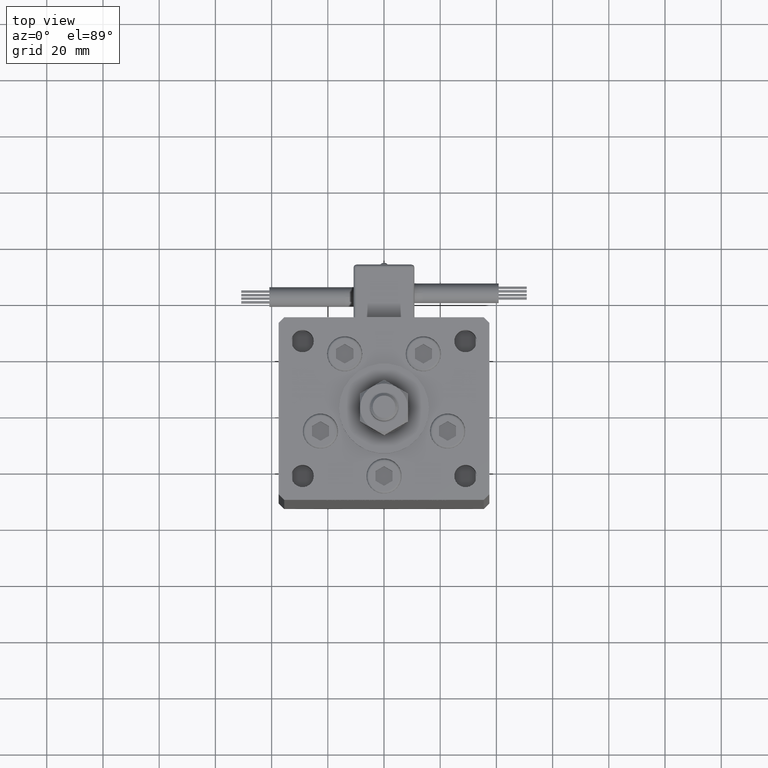
[diagram: clean part render]
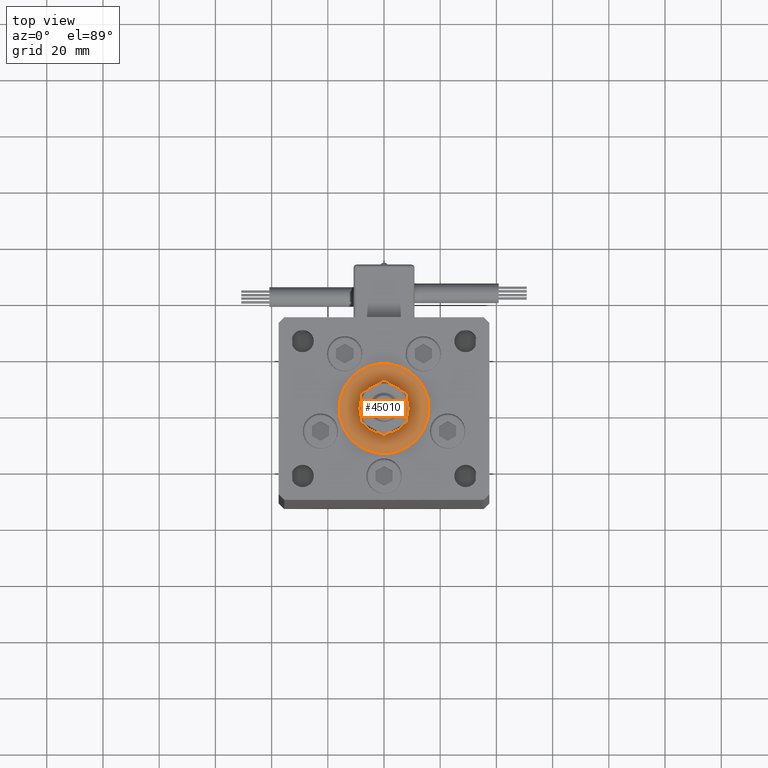
[diagram: same view with one face highlighted and labeled with its STEP entity id]
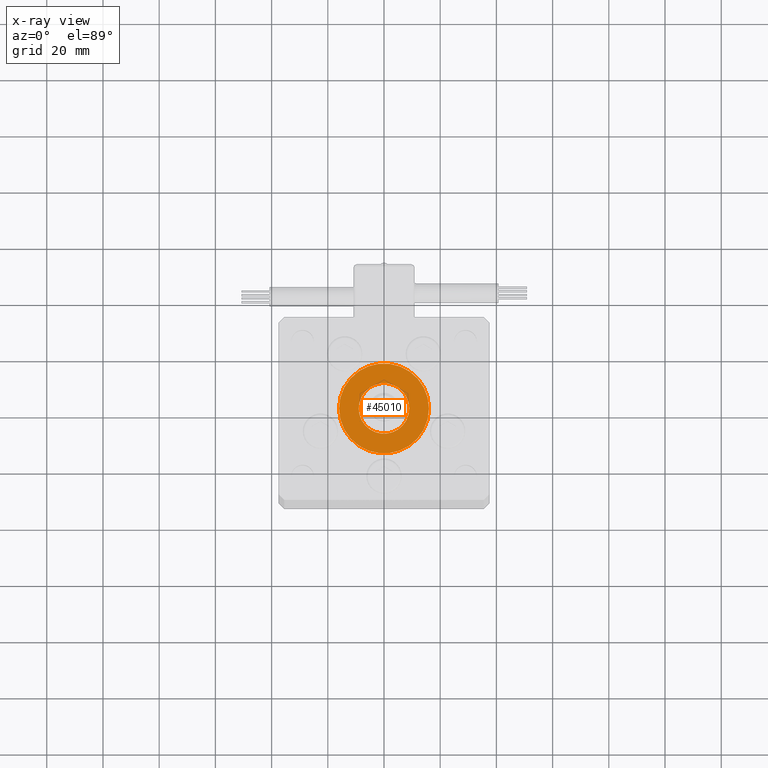
[diagram: x-ray of the same camera — body ghosted, the highlighted face saturated]
A machine part, top view. The second image highlights one B-rep face of the part: STEP entity #45010.
The next image is the same camera in x-ray: the body ghosted, the highlighted face saturated — about 0% of this face is hidden behind the body in this view.
In plain terms, the highlighted planar face has unit normal (0, 0, 1).
Its self-contained STEP definition (entity closure, byte-faithful):
#751 = AXIS2_PLACEMENT_3D ( 'NONE', #41529, #2215, #55283 ) ;
#926 = EDGE_CURVE ( 'NONE', #8805, #23055, #18516, .T. ) ;
#1098 = AXIS2_PLACEMENT_3D ( 'NONE', #46516, #33907, #20121 ) ;
#2215 = DIRECTION ( 'NONE',  ( 0.000000000000000000, 0.000000000000000000, 1.000000000000000000 ) ) ;
#3294 = CARTESIAN_POINT ( 'NONE',  ( 9.000000000000000000, -6.938893903907228378E-15, 2.000000000000000000 ) ) ;
#3568 = FACE_BOUND ( 'NONE', #25757, .T. ) ;
#4129 = ORIENTED_EDGE ( 'NONE', *, *, #54233, .T. ) ;
#7795 = CARTESIAN_POINT ( 'NONE',  ( -16.00000000000000355, -6.938893903907228378E-15, 2.000000000000000000 ) ) ;
#8121 = DIRECTION ( 'NONE',  ( 1.000000000000000000, 0.000000000000000000, 0.000000000000000000 ) ) ;
#8805 = VERTEX_POINT ( 'NONE', #3294 ) ;
#10275 = ORIENTED_EDGE ( 'NONE', *, *, #13488, .T. ) ;
#13488 = EDGE_CURVE ( 'NONE', #55054, #30136, #53104, .T. ) ;
#14601 = CIRCLE ( 'NONE', #46687, 16.00000000000000355 ) ;
#15223 = AXIS2_PLACEMENT_3D ( 'NONE', #48058, #29694, #21081 ) ;
#17331 = FACE_OUTER_BOUND ( 'NONE', #43211, .T. ) ;
#18516 = CIRCLE ( 'NONE', #1098, 9.000000000000000000 ) ;
#19771 = ORIENTED_EDGE ( 'NONE', *, *, #926, .F. ) ;
#20121 = DIRECTION ( 'NONE',  ( 1.000000000000000000, 0.000000000000000000, 0.000000000000000000 ) ) ;
#21081 = DIRECTION ( 'NONE',  ( 1.000000000000000000, 0.000000000000000000, -0.000000000000000000 ) ) ;
#23055 = VERTEX_POINT ( 'NONE', #27516 ) ;
#25757 = EDGE_LOOP ( 'NONE', ( #19771, #47072 ) ) ;
#27516 = CARTESIAN_POINT ( 'NONE',  ( -9.000000000000000000, -5.836711784674610467E-15, 2.000000000000000000 ) ) ;
#29694 = DIRECTION ( 'NONE',  ( 0.000000000000000000, 0.000000000000000000, 1.000000000000000000 ) ) ;
#30136 = VERTEX_POINT ( 'NONE', #7795 ) ;
#30552 = PLANE ( 'NONE',  #15223 ) ;
#31917 = CIRCLE ( 'NONE', #751, 9.000000000000000000 ) ;
#33907 = DIRECTION ( 'NONE',  ( 0.000000000000000000, 0.000000000000000000, 1.000000000000000000 ) ) ;
#33963 = CARTESIAN_POINT ( 'NONE',  ( 0.000000000000000000, -6.938893903907228378E-15, 2.000000000000000000 ) ) ;
#34808 = DIRECTION ( 'NONE',  ( 0.000000000000000000, 0.000000000000000000, 1.000000000000000000 ) ) ;
#38044 = CARTESIAN_POINT ( 'NONE',  ( 16.00000000000000355, -4.979459025271462852E-15, 2.000000000000000000 ) ) ;
#38449 = AXIS2_PLACEMENT_3D ( 'NONE', #51776, #44020, #48062 ) ;
#41529 = CARTESIAN_POINT ( 'NONE',  ( 0.000000000000000000, -6.938893903907228378E-15, 2.000000000000000000 ) ) ;
#43211 = EDGE_LOOP ( 'NONE', ( #4129, #10275 ) ) ;
#44020 = DIRECTION ( 'NONE',  ( 0.000000000000000000, 0.000000000000000000, 1.000000000000000000 ) ) ;
#45010 = ADVANCED_FACE ( 'NONE', ( #3568, #17331 ), #30552, .T. ) ;
#46516 = CARTESIAN_POINT ( 'NONE',  ( 0.000000000000000000, -6.938893903907228378E-15, 2.000000000000000000 ) ) ;
#46687 = AXIS2_PLACEMENT_3D ( 'NONE', #33963, #34808, #8121 ) ;
#47072 = ORIENTED_EDGE ( 'NONE', *, *, #49710, .F. ) ;
#48058 = CARTESIAN_POINT ( 'NONE',  ( 0.000000000000000000, -6.938893903907228378E-15, 2.000000000000000000 ) ) ;
#48062 = DIRECTION ( 'NONE',  ( 1.000000000000000000, 0.000000000000000000, 0.000000000000000000 ) ) ;
#49710 = EDGE_CURVE ( 'NONE', #23055, #8805, #31917, .T. ) ;
#51776 = CARTESIAN_POINT ( 'NONE',  ( 0.000000000000000000, -6.938893903907228378E-15, 2.000000000000000000 ) ) ;
#53104 = CIRCLE ( 'NONE', #38449, 16.00000000000000355 ) ;
#54233 = EDGE_CURVE ( 'NONE', #30136, #55054, #14601, .T. ) ;
#55054 = VERTEX_POINT ( 'NONE', #38044 ) ;
#55283 = DIRECTION ( 'NONE',  ( 1.000000000000000000, 0.000000000000000000, 0.000000000000000000 ) ) ;